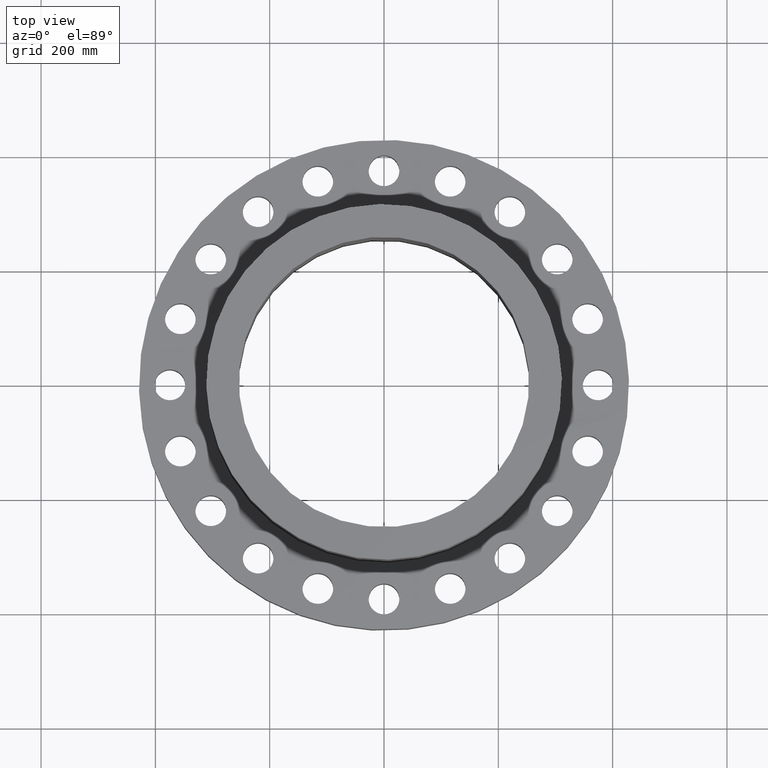
[diagram: clean part render]
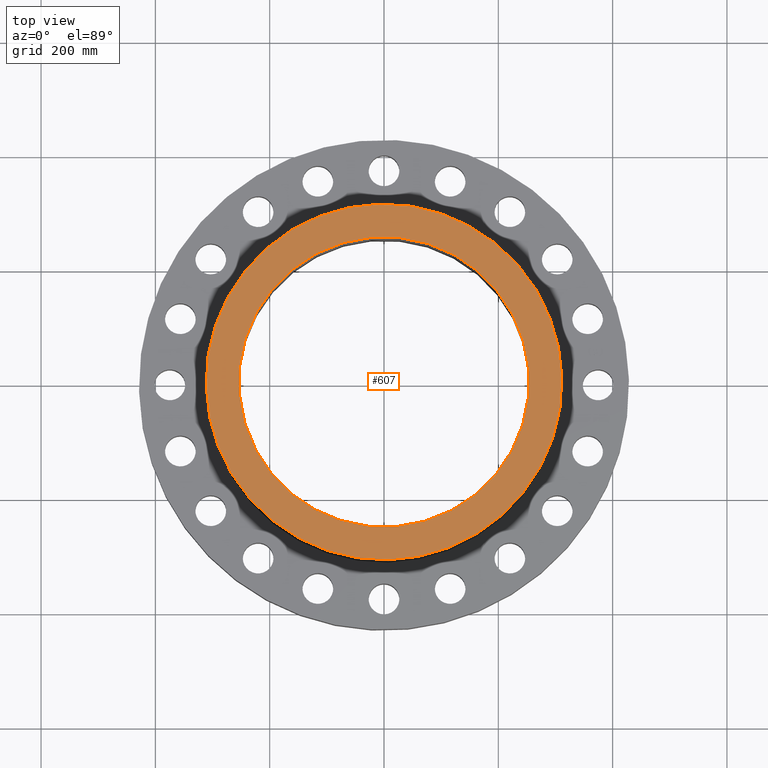
[diagram: same view with one face highlighted and labeled with its STEP entity id]
A machine part, top view. The second image highlights one B-rep face of the part: STEP entity #607.
In plain terms, the highlighted planar face has unit normal (0, 0, -1).
Its self-contained STEP definition (entity closure, byte-faithful):
#546=AXIS2_PLACEMENT_3D('Circle Axis2P3D',#544,#545,$) ;
#570=AXIS2_PLACEMENT_3D('Circle Axis2P3D',#568,#569,$) ;
#583=AXIS2_PLACEMENT_3D('Plane Axis2P3D',#580,#581,#582) ;
#591=AXIS2_PLACEMENT_3D('Circle Axis2P3D',#589,#590,$) ;
#600=AXIS2_PLACEMENT_3D('Circle Axis2P3D',#598,#599,$) ;
#541=CARTESIAN_POINT('Vertex',(5.87296284792,10.7503863832,15.7500000001)) ;
#544=CARTESIAN_POINT('Axis2P3D Location',(0.,0.,15.7500000001)) ;
#548=CARTESIAN_POINT('Vertex',(-5.87296284792,-10.7503863832,15.7500000001)) ;
#568=CARTESIAN_POINT('Axis2P3D Location',(0.,0.,15.7500000001)) ;
#580=CARTESIAN_POINT('Axis2P3D Location',(0.,12.25,15.7500000001)) ;
#589=CARTESIAN_POINT('Axis2P3D Location',(0.,0.,15.7500000001)) ;
#593=CARTESIAN_POINT('Vertex',(-4.79425538606,-8.77582561894,15.7500000001)) ;
#595=CARTESIAN_POINT('Vertex',(4.79425538606,8.77582561894,15.7500000001)) ;
#598=CARTESIAN_POINT('Axis2P3D Location',(0.,0.,15.7500000001)) ;
#545=DIRECTION('Axis2P3D Direction',(0.,0.,-0.0393700787402)) ;
#569=DIRECTION('Axis2P3D Direction',(0.,0.,-0.0393700787402)) ;
#581=DIRECTION('Axis2P3D Direction',(0.,0.,-0.0393700787402)) ;
#582=DIRECTION('Axis2P3D XDirection',(0.0393700787402,0.,0.)) ;
#590=DIRECTION('Axis2P3D Direction',(0.,0.,-0.0393700787402)) ;
#599=DIRECTION('Axis2P3D Direction',(0.,0.,-0.0393700787402)) ;
#586=ORIENTED_EDGE('',*,*,#550,.F.) ;
#587=ORIENTED_EDGE('',*,*,#572,.F.) ;
#604=ORIENTED_EDGE('',*,*,#597,.T.) ;
#605=ORIENTED_EDGE('',*,*,#602,.T.) ;
#606=FACE_BOUND('',#603,.T.) ;
#607=ADVANCED_FACE('PartBody',(#588,#606),#584,.F.) ;
#547=CIRCLE('generated circle',#546,12.25) ;
#571=CIRCLE('generated circle',#570,12.25) ;
#592=CIRCLE('generated circle',#591,10.) ;
#601=CIRCLE('generated circle',#600,10.) ;
#550=EDGE_CURVE('',#542,#549,#547,.T.) ;
#572=EDGE_CURVE('',#549,#542,#571,.T.) ;
#597=EDGE_CURVE('',#594,#596,#592,.T.) ;
#602=EDGE_CURVE('',#596,#594,#601,.T.) ;
#585=EDGE_LOOP('',(#586,#587)) ;
#603=EDGE_LOOP('',(#604,#605)) ;
#588=FACE_OUTER_BOUND('',#585,.T.) ;
#584=PLANE('',#583) ;
#542=VERTEX_POINT('',#541) ;
#549=VERTEX_POINT('',#548) ;
#594=VERTEX_POINT('',#593) ;
#596=VERTEX_POINT('',#595) ;